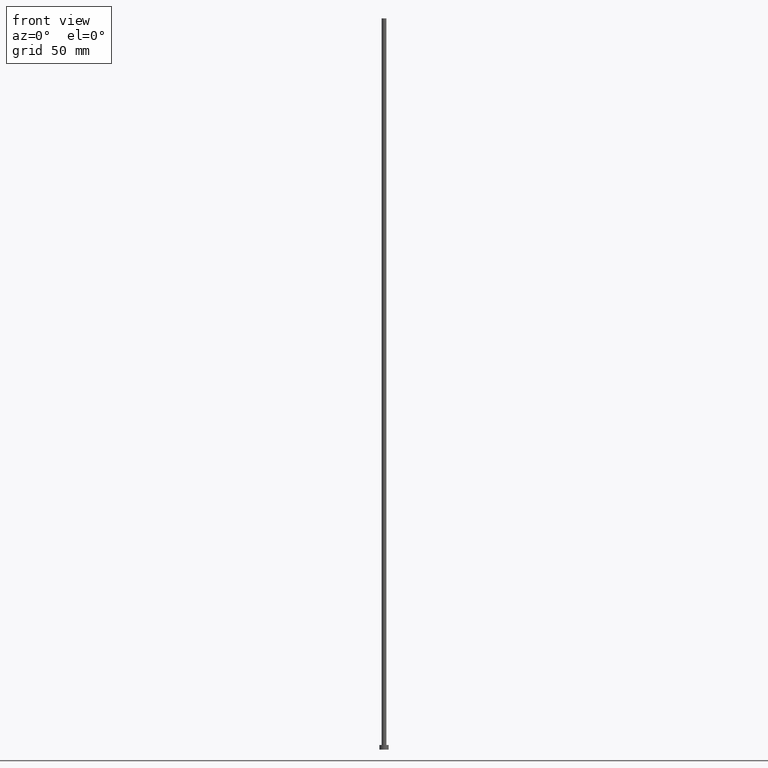
[diagram: clean part render]
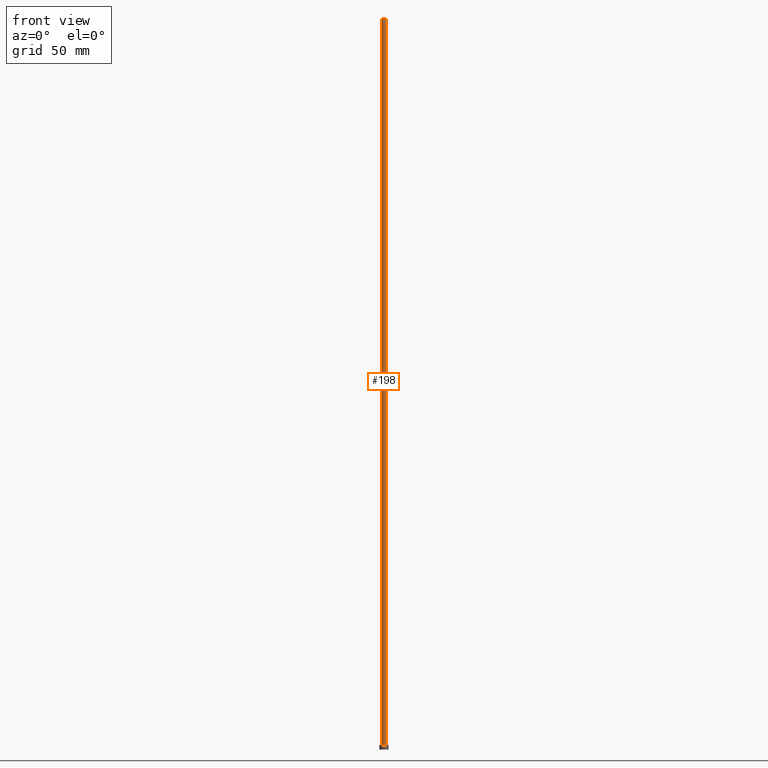
[diagram: same view with one face highlighted and labeled with its STEP entity id]
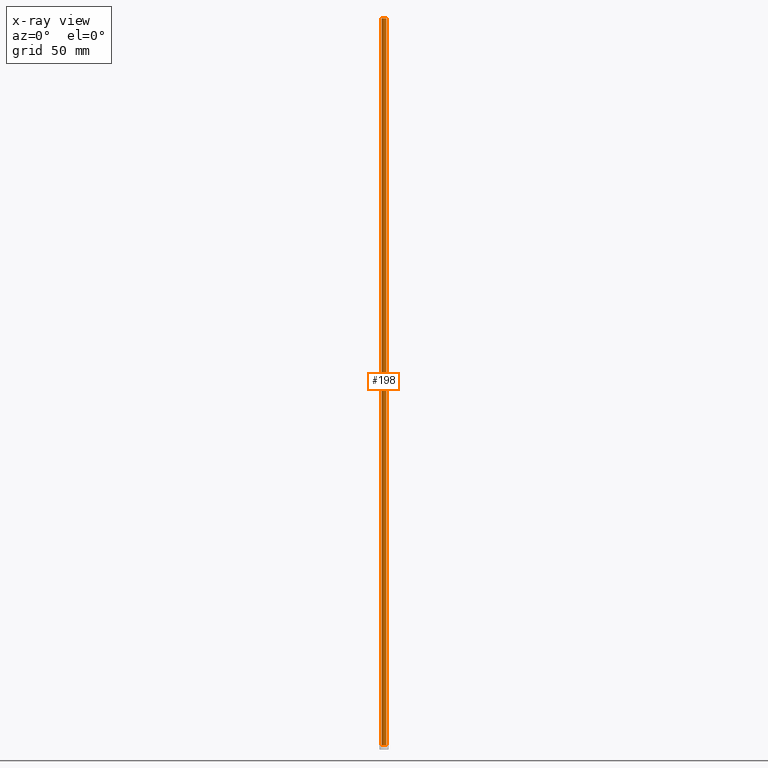
[diagram: x-ray of the same camera — body ghosted, the highlighted face saturated]
A machine part, front view. The second image highlights one B-rep face of the part: STEP entity #198.
The next image is the same camera in x-ray: the body ghosted, the highlighted face saturated — about 0% of this face is hidden behind the body in this view.
In plain terms, the highlighted cylindrical surface (edge-blend (fillet) strip) has radius 1 mm, axis along (-0, -0, -1).
Its self-contained STEP definition (entity closure, byte-faithful):
#5 = AXIS2_PLACEMENT_3D ( 'NONE', #69, #203, #50 ) ;
#8 = CARTESIAN_POINT ( 'NONE',  ( -1.000000000000000000, 0.000000000000000000, 2.000000000000000000 ) ) ;
#31 = DIRECTION ( 'NONE',  ( -0.000000000000000000, -0.000000000000000000, -1.000000000000000000 ) ) ;
#33 = VERTEX_POINT ( 'NONE', #173 ) ;
#36 = CARTESIAN_POINT ( 'NONE',  ( 1.000000000000000000, 1.224646799147353207E-16, 2.000000000000000000 ) ) ;
#50 = DIRECTION ( 'NONE',  ( 1.000000000000000000, 0.000000000000000000, 0.000000000000000000 ) ) ;
#57 = ORIENTED_EDGE ( 'NONE', *, *, #230, .F. ) ;
#67 = EDGE_CURVE ( 'NONE', #192, #243, #157, .T. ) ;
#69 = CARTESIAN_POINT ( 'NONE',  ( 0.000000000000000000, 0.000000000000000000, 2.000000000000000000 ) ) ;
#77 = ORIENTED_EDGE ( 'NONE', *, *, #165, .T. ) ;
#81 = VECTOR ( 'NONE', #31, 1000.000000000000000 ) ;
#90 = CARTESIAN_POINT ( 'NONE',  ( 1.000000000000000000, 1.224646799147353207E-16, 315.0000000000000000 ) ) ;
#91 = VECTOR ( 'NONE', #254, 1000.000000000000000 ) ;
#92 = CYLINDRICAL_SURFACE ( 'NONE', #252, 1.000000000000000000 ) ;
#97 = VERTEX_POINT ( 'NONE', #36 ) ;
#101 = AXIS2_PLACEMENT_3D ( 'NONE', #131, #126, #137 ) ;
#116 = DIRECTION ( 'NONE',  ( -1.000000000000000000, 0.000000000000000000, 0.000000000000000000 ) ) ;
#126 = DIRECTION ( 'NONE',  ( 0.000000000000000000, 0.000000000000000000, 1.000000000000000000 ) ) ;
#131 = CARTESIAN_POINT ( 'NONE',  ( 0.000000000000000000, 0.000000000000000000, 315.0000000000000000 ) ) ;
#137 = DIRECTION ( 'NONE',  ( 1.000000000000000000, 0.000000000000000000, 0.000000000000000000 ) ) ;
#140 = CIRCLE ( 'NONE', #5, 1.000000000000000000 ) ;
#141 = EDGE_LOOP ( 'NONE', ( #228, #57, #172, #77 ) ) ;
#150 = CARTESIAN_POINT ( 'NONE',  ( 0.000000000000000000, 0.000000000000000000, 315.0000000000000000 ) ) ;
#154 = DIRECTION ( 'NONE',  ( -0.000000000000000000, -0.000000000000000000, -1.000000000000000000 ) ) ;
#157 = LINE ( 'NONE', #181, #91 ) ;
#165 = EDGE_CURVE ( 'NONE', #243, #97, #140, .T. ) ;
#172 = ORIENTED_EDGE ( 'NONE', *, *, #67, .T. ) ;
#173 = CARTESIAN_POINT ( 'NONE',  ( 1.000000000000000000, 1.224646799147353207E-16, 315.0000000000000000 ) ) ;
#181 = CARTESIAN_POINT ( 'NONE',  ( -1.000000000000000000, 0.000000000000000000, 315.0000000000000000 ) ) ;
#185 = CARTESIAN_POINT ( 'NONE',  ( -1.000000000000000000, 0.000000000000000000, 315.0000000000000000 ) ) ;
#187 = LINE ( 'NONE', #90, #81 ) ;
#192 = VERTEX_POINT ( 'NONE', #185 ) ;
#194 = EDGE_CURVE ( 'NONE', #33, #97, #187, .T. ) ;
#198 = ADVANCED_FACE ( 'NONE', ( #210 ), #92, .T. ) ;
#203 = DIRECTION ( 'NONE',  ( 0.000000000000000000, 0.000000000000000000, 1.000000000000000000 ) ) ;
#206 = CIRCLE ( 'NONE', #101, 1.000000000000000000 ) ;
#210 = FACE_OUTER_BOUND ( 'NONE', #141, .T. ) ;
#228 = ORIENTED_EDGE ( 'NONE', *, *, #194, .F. ) ;
#230 = EDGE_CURVE ( 'NONE', #192, #33, #206, .T. ) ;
#243 = VERTEX_POINT ( 'NONE', #8 ) ;
#252 = AXIS2_PLACEMENT_3D ( 'NONE', #150, #154, #116 ) ;
#254 = DIRECTION ( 'NONE',  ( -0.000000000000000000, -0.000000000000000000, -1.000000000000000000 ) ) ;